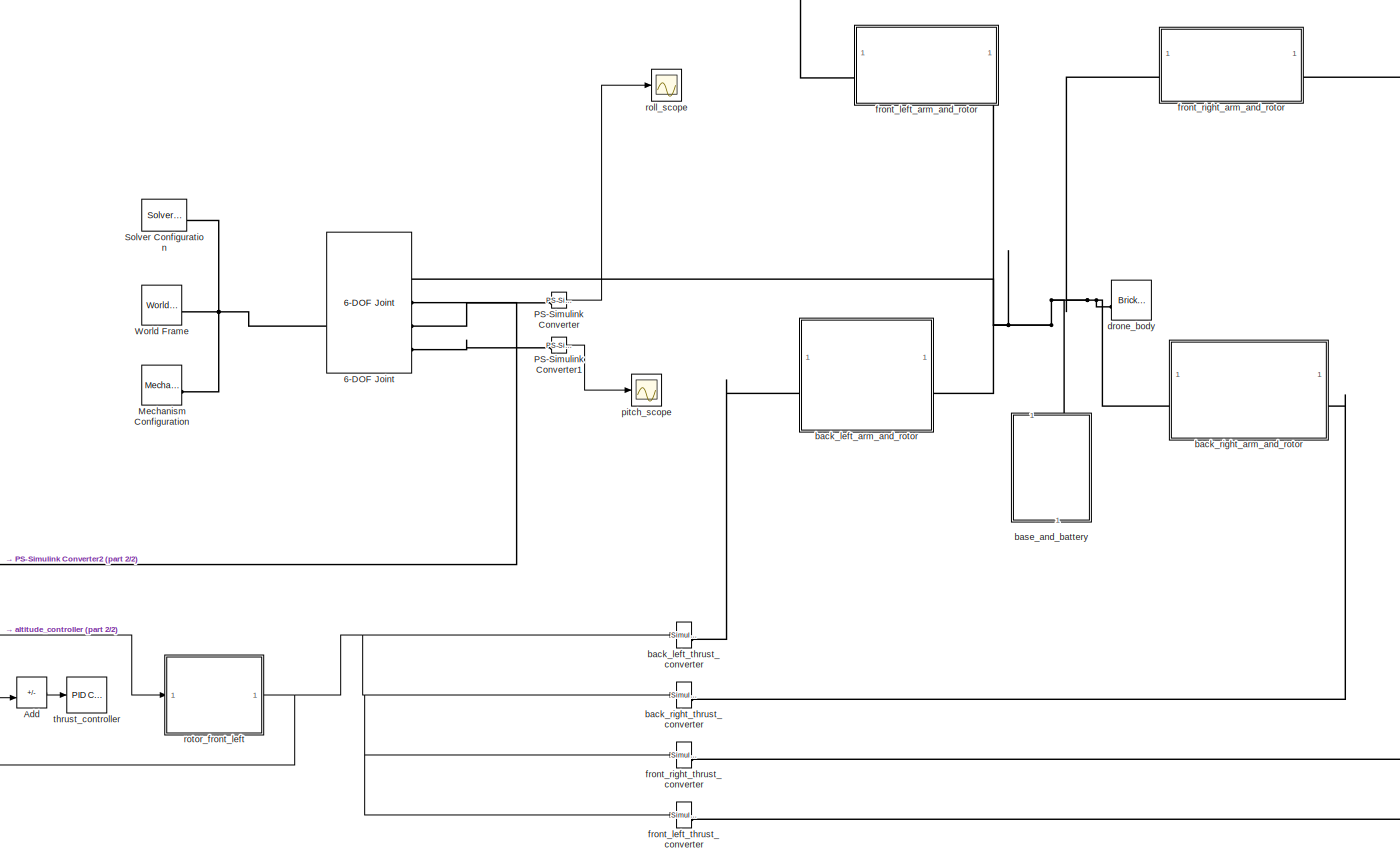
[diagram: root canvas - part 1/2, center side, full height]
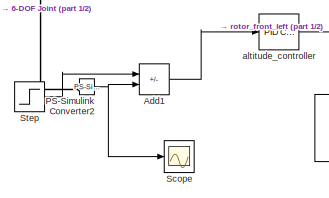
[diagram: root canvas - part 2/2, bottom left region]
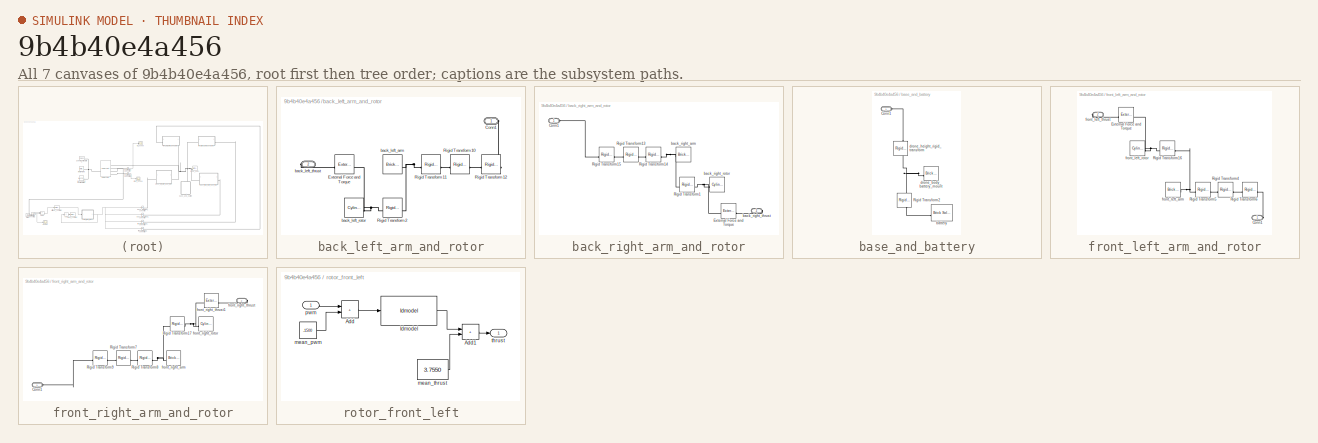
[diagram: thumbnail index - all 7 canvases of the model, root first then tree order]
MODEL slx_9b4b40e4a456
KIND model
CONFIG AbsTol = auto
CONFIG EnableMultiTasking = off
CONFIG FixedStep = auto
CONFIG MaxStep = auto
CONFIG MinStep = auto
CONFIG RelTol = 1e-3
CONFIG SampleTimeConstraint = Unconstrained
CONFIG SolverName = VariableStepAuto
CONFIG StartTime = 0.0
CONFIG StopTime = 10.0
WORKSPACE source: mxarray member
WORKSPACE arm_angle_deg: Simulink.Parameter (value not decoded)
WORKSPACE arm_disp_x_m: Simulink.Parameter (value not decoded)
WORKSPACE arm_disp_y_m: Simulink.Parameter (value not decoded)
WORKSPACE arm_height_m: Simulink.Parameter (value not decoded)
WORKSPACE arm_length_m: Simulink.Parameter (value not decoded)
WORKSPACE arm_mass_kg: Simulink.Parameter (value not decoded)
WORKSPACE arm_width_m: Simulink.Parameter (value not decoded)
WORKSPACE battery_height: Simulink.Parameter (value not decoded)
WORKSPACE battery_length: Simulink.Parameter (value not decoded)
WORKSPACE battery_mass: Simulink.Parameter (value not decoded)
WORKSPACE battery_width: Simulink.Parameter (value not decoded)
WORKSPACE body_height_m: Simulink.Parameter (value not decoded)
WORKSPACE body_length_m: Simulink.Parameter (value not decoded)
WORKSPACE body_mass_kg: Simulink.Parameter (value not decoded)
WORKSPACE body_width_m: Simulink.Parameter (value not decoded)
WORKSPACE rotor_height: Simulink.Parameter (value not decoded)
WORKSPACE rotor_radius: Simulink.Parameter (value not decoded)
BLOCK [Reference] 6-DOF Joint  REF=sm_lib/Joints/6-DOF Joint
  SourceBlock = sm_lib/Joints/6-DOF Joint
  SourceType = 6-DOF Joint
BLOCK [Sum] Add
  IconShape = rectangular
  Inputs = +-
BLOCK [Sum] Add1
  IconShape = rectangular
  Inputs = +-
BLOCK [Reference] Mechanism Configuration  REF=sm_lib/Utilities/Mechanism
Configuration
  SourceBlock = sm_lib/Utilities/Mechanism\nConfiguration
  SourceType = Mechanism\nConfiguration
BLOCK [Reference] PS-Simulink Converter  REF=nesl_utility/PS-Simulink
Converter
  SourceBlock = nesl_utility/PS-Simulink\nConverter
  SourceType = PS-Simulink\nConverter
BLOCK [Reference] PS-Simulink Converter1  REF=nesl_utility/PS-Simulink
Converter
  SourceBlock = nesl_utility/PS-Simulink\nConverter
  SourceType = PS-Simulink\nConverter
BLOCK [Reference] PS-Simulink Converter2  REF=nesl_utility/PS-Simulink
Converter
  SourceBlock = nesl_utility/PS-Simulink\nConverter
  SourceType = PS-Simulink\nConverter
BLOCK [Scope] Scope
  Floating = off
  NumInputPorts = 1
  ScopeSpecificationString = Simulink.scopes.TimeScopeBlockCfg('CurrentConfiguration', extmgr.ConfigurationSet(extmgr.Configuration('Core','General UI',true),extmgr.Configuration('Core','Source UI',true),extmgr.Configuration('Sources','WiredSimulink',true,'DataLoggingVariableName','ScopeData2'),extmgr.Configuration('Visuals','Time Domain',true,'SerializedDisplays',{struct('MinYLimReal','-3.34219','MaxYLimReal','3.02415','YLab...<+1440ch>
BLOCK [Reference] Solver Configuration  REF=nesl_utility/Solver
Configuration
  SourceBlock = nesl_utility/Solver\nConfiguration
  SourceType = Solver\nConfiguration
BLOCK [Step] Step
  After = 2
  SampleTime = 0
  Time = 0
BLOCK [Reference] World Frame  REF=sm_lib/Frames and
Transforms/World Frame
  SourceBlock = sm_lib/Frames and\nTransforms/World Frame
  SourceType = World Frame
BLOCK [Reference] altitude_controller  REF=slpidlib/PID Controller
  LibrarySourceBlock = simulink/Continuous/PID Controller
  SourceBlock = slpidlib/PID Controller
  SourceType = PID 1dof
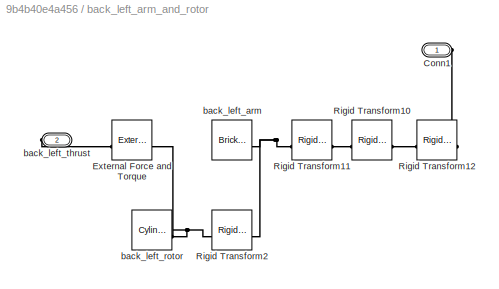
BLOCK [SubSystem] back_left_arm_and_rotor
  NameLocation = top
BLOCK [PMIOPort] back_left_arm_and_rotor/Conn1
  Side = Left
BLOCK [Reference] back_left_arm_and_rotor/External Force and Torque  REF=sm_lib/Forces and
Torques/External Force
and Torque
  SourceBlock = sm_lib/Forces and\nTorques/External Force\nand Torque
  SourceType = External Force\nand Torque
BLOCK [Reference] back_left_arm_and_rotor/Rigid Transform10  REF=sm_lib/Frames and
Transforms/Rigid
Transform
  NameLocation = top
  SourceBlock = sm_lib/Frames and\nTransforms/Rigid\nTransform
  SourceType = Rigid\nTransform
BLOCK [Reference] back_left_arm_and_rotor/Rigid Transform11  REF=sm_lib/Frames and
Transforms/Rigid
Transform
  NameLocation = top
  SourceBlock = sm_lib/Frames and\nTransforms/Rigid\nTransform
  SourceType = Rigid\nTransform
BLOCK [Reference] back_left_arm_and_rotor/Rigid Transform12  REF=sm_lib/Frames and
Transforms/Rigid
Transform
  NameLocation = top
  SourceBlock = sm_lib/Frames and\nTransforms/Rigid\nTransform
  SourceType = Rigid\nTransform
BLOCK [Reference] back_left_arm_and_rotor/Rigid Transform2  REF=sm_lib/Frames and
Transforms/Rigid
Transform
  NameLocation = top
  SourceBlock = sm_lib/Frames and\nTransforms/Rigid\nTransform
  SourceType = Rigid\nTransform
BLOCK [Reference] back_left_arm_and_rotor/back_left_arm  REF=sm_lib/Body Elements/Brick Solid
  SourceBlock = sm_lib/Body Elements/Brick Solid
  SourceType = Brick Solid
BLOCK [Reference] back_left_arm_and_rotor/back_left_rotor  REF=sm_lib/Body Elements/Cylindrical Solid
  SourceBlock = sm_lib/Body Elements/Cylindrical Solid
  SourceType = Cylindrical Solid
BLOCK [PMIOPort] back_left_arm_and_rotor/back_left_thrust
  Port = 2
  Side = Right
BLOCK [Reference] back_left_thrust_converter  REF=nesl_utility/Simulink-PS
Converter
  SourceBlock = nesl_utility/Simulink-PS\nConverter
  SourceType = Simulink-PS\nConverter
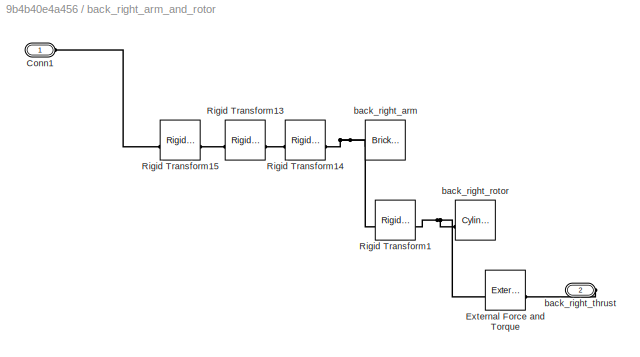
BLOCK [SubSystem] back_right_arm_and_rotor
BLOCK [PMIOPort] back_right_arm_and_rotor/Conn1
  Side = Left
BLOCK [Reference] back_right_arm_and_rotor/External Force and Torque  REF=sm_lib/Forces and
Torques/External Force
and Torque
  NameLocation = top
  SourceBlock = sm_lib/Forces and\nTorques/External Force\nand Torque
  SourceType = External Force\nand Torque
BLOCK [Reference] back_right_arm_and_rotor/Rigid Transform1  REF=sm_lib/Frames and
Transforms/Rigid
Transform
  SourceBlock = sm_lib/Frames and\nTransforms/Rigid\nTransform
  SourceType = Rigid\nTransform
BLOCK [Reference] back_right_arm_and_rotor/Rigid Transform13  REF=sm_lib/Frames and
Transforms/Rigid
Transform
  SourceBlock = sm_lib/Frames and\nTransforms/Rigid\nTransform
  SourceType = Rigid\nTransform
BLOCK [Reference] back_right_arm_and_rotor/Rigid Transform14  REF=sm_lib/Frames and
Transforms/Rigid
Transform
  SourceBlock = sm_lib/Frames and\nTransforms/Rigid\nTransform
  SourceType = Rigid\nTransform
BLOCK [Reference] back_right_arm_and_rotor/Rigid Transform15  REF=sm_lib/Frames and
Transforms/Rigid
Transform
  SourceBlock = sm_lib/Frames and\nTransforms/Rigid\nTransform
  SourceType = Rigid\nTransform
BLOCK [Reference] back_right_arm_and_rotor/back_right_arm  REF=sm_lib/Body Elements/Brick Solid
  NameLocation = top
  SourceBlock = sm_lib/Body Elements/Brick Solid
  SourceType = Brick Solid
BLOCK [Reference] back_right_arm_and_rotor/back_right_rotor  REF=sm_lib/Body Elements/Cylindrical Solid
  NameLocation = top
  SourceBlock = sm_lib/Body Elements/Cylindrical Solid
  SourceType = Cylindrical Solid
BLOCK [PMIOPort] back_right_arm_and_rotor/back_right_thrust
  NameLocation = top
  Port = 2
  Side = Right
BLOCK [Reference] back_right_thrust_converter  REF=nesl_utility/Simulink-PS
Converter
  SourceBlock = nesl_utility/Simulink-PS\nConverter
  SourceType = Simulink-PS\nConverter
BLOCK [SubSystem] base_and_battery
  NameLocation = left
BLOCK [PMIOPort] base_and_battery/Conn1
  Side = Left
BLOCK [Reference] base_and_battery/Rigid Transform2  REF=sm_lib/Frames and
Transforms/Rigid
Transform
  NameLocation = left
  SourceBlock = sm_lib/Frames and\nTransforms/Rigid\nTransform
  SourceType = Rigid\nTransform
BLOCK [Reference] base_and_battery/battery  REF=sm_lib/Body Elements/Brick Solid
  NameLocation = top
  SourceBlock = sm_lib/Body Elements/Brick Solid
  SourceType = Brick Solid
BLOCK [Reference] base_and_battery/drone_body_battery_mount  REF=sm_lib/Body Elements/Brick Solid
  NameLocation = top
  SourceBlock = sm_lib/Body Elements/Brick Solid
  SourceType = Brick Solid
BLOCK [Reference] base_and_battery/drone_height_rigid_transform  REF=sm_lib/Frames and
Transforms/Rigid
Transform
  NameLocation = left
  SourceBlock = sm_lib/Frames and\nTransforms/Rigid\nTransform
  SourceType = Rigid\nTransform
BLOCK [Reference] drone_body  REF=sm_lib/Body Elements/Brick Solid
  NameLocation = top
  SourceBlock = sm_lib/Body Elements/Brick Solid
  SourceType = Brick Solid
BLOCK [SubSystem] front_left_arm_and_rotor
  NameLocation = top
BLOCK [PMIOPort] front_left_arm_and_rotor/Conn1
  Side = Left
BLOCK [Reference] front_left_arm_and_rotor/External Force and Torque  REF=sm_lib/Forces and
Torques/External Force
and Torque
  SourceBlock = sm_lib/Forces and\nTorques/External Force\nand Torque
  SourceType = External Force\nand Torque
BLOCK [Reference] front_left_arm_and_rotor/Rigid Transform16  REF=sm_lib/Frames and
Transforms/Rigid
Transform
  NameLocation = top
  SourceBlock = sm_lib/Frames and\nTransforms/Rigid\nTransform
  SourceType = Rigid\nTransform
BLOCK [Reference] front_left_arm_and_rotor/Rigid Transform4  REF=sm_lib/Frames and
Transforms/Rigid
Transform
  NameLocation = top
  SourceBlock = sm_lib/Frames and\nTransforms/Rigid\nTransform
  SourceType = Rigid\nTransform
BLOCK [Reference] front_left_arm_and_rotor/Rigid Transform5  REF=sm_lib/Frames and
Transforms/Rigid
Transform
  NameLocation = top
  SourceBlock = sm_lib/Frames and\nTransforms/Rigid\nTransform
  SourceType = Rigid\nTransform
BLOCK [Reference] front_left_arm_and_rotor/Rigid Transform6  REF=sm_lib/Frames and
Transforms/Rigid
Transform
  NameLocation = top
  SourceBlock = sm_lib/Frames and\nTransforms/Rigid\nTransform
  SourceType = Rigid\nTransform
BLOCK [Reference] front_left_arm_and_rotor/front_left_arm  REF=sm_lib/Body Elements/Brick Solid
  SourceBlock = sm_lib/Body Elements/Brick Solid
  SourceType = Brick Solid
BLOCK [Reference] front_left_arm_and_rotor/front_left_rotor  REF=sm_lib/Body Elements/Cylindrical Solid
  SourceBlock = sm_lib/Body Elements/Cylindrical Solid
  SourceType = Cylindrical Solid
BLOCK [PMIOPort] front_left_arm_and_rotor/front_left_thrust
  Port = 2
  Side = Right
BLOCK [Reference] front_left_thrust_converter  REF=nesl_utility/Simulink-PS
Converter
  SourceBlock = nesl_utility/Simulink-PS\nConverter
  SourceType = Simulink-PS\nConverter
BLOCK [SubSystem] front_right_arm_and_rotor
BLOCK [PMIOPort] front_right_arm_and_rotor/Conn1
  Side = Left
BLOCK [Reference] front_right_arm_and_rotor/Rigid Transform17  REF=sm_lib/Frames and
Transforms/Rigid
Transform
  SourceBlock = sm_lib/Frames and\nTransforms/Rigid\nTransform
  SourceType = Rigid\nTransform
BLOCK [Reference] front_right_arm_and_rotor/Rigid Transform7  REF=sm_lib/Frames and
Transforms/Rigid
Transform
  SourceBlock = sm_lib/Frames and\nTransforms/Rigid\nTransform
  SourceType = Rigid\nTransform
BLOCK [Reference] front_right_arm_and_rotor/Rigid Transform8  REF=sm_lib/Frames and
Transforms/Rigid
Transform
  SourceBlock = sm_lib/Frames and\nTransforms/Rigid\nTransform
  SourceType = Rigid\nTransform
BLOCK [Reference] front_right_arm_and_rotor/Rigid Transform9  REF=sm_lib/Frames and
Transforms/Rigid
Transform
  SourceBlock = sm_lib/Frames and\nTransforms/Rigid\nTransform
  SourceType = Rigid\nTransform
BLOCK [Reference] front_right_arm_and_rotor/front_right_arm  REF=sm_lib/Body Elements/Brick Solid
  NameLocation = top
  SourceBlock = sm_lib/Body Elements/Brick Solid
  SourceType = Brick Solid
BLOCK [Reference] front_right_arm_and_rotor/front_right_rotor  REF=sm_lib/Body Elements/Cylindrical Solid
  NameLocation = top
  SourceBlock = sm_lib/Body Elements/Cylindrical Solid
  SourceType = Cylindrical Solid
BLOCK [PMIOPort] front_right_arm_and_rotor/front_right_thrust
  NameLocation = top
  Port = 2
  Side = Right
BLOCK [Reference] front_right_arm_and_rotor/front_right_thrust1  REF=sm_lib/Forces and
Torques/External Force
and Torque
  NameLocation = top
  SourceBlock = sm_lib/Forces and\nTorques/External Force\nand Torque
  SourceType = External Force\nand Torque
BLOCK [Reference] front_right_thrust_converter  REF=nesl_utility/Simulink-PS
Converter
  SourceBlock = nesl_utility/Simulink-PS\nConverter
  SourceType = Simulink-PS\nConverter
BLOCK [Scope] pitch_scope
  Floating = off
  NumInputPorts = 1
  ScopeSpecificationString = Simulink.scopes.TimeScopeBlockCfg('CurrentConfiguration', extmgr.ConfigurationSet(extmgr.Configuration('Core','General UI',true),extmgr.Configuration('Core','Source UI',true),extmgr.Configuration('Sources','WiredSimulink',true,'DataLoggingVariableName','ScopeData1'),extmgr.Configuration('Visuals','Time Domain',true,'SerializedDisplays',{struct('MinYLimReal','-1.00000','MaxYLimReal','1.00000','YLab...<+1381ch>
BLOCK [Scope] roll_scope
  Floating = off
  NumInputPorts = 1
  ScopeSpecificationString = Simulink.scopes.TimeScopeBlockCfg('CurrentConfiguration', extmgr.ConfigurationSet(extmgr.Configuration('Core','General UI',true),extmgr.Configuration('Core','Source UI',true),extmgr.Configuration('Sources','WiredSimulink',true),extmgr.Configuration('Visuals','Time Domain',true,'SerializedDisplays',{struct('MinYLimReal','-3864.88516','MaxYLimReal','457.6118','YLabelReal','','MinYLimMag','  0.00000'...<+1359ch>
BLOCK [SubSystem] rotor_front_left
BLOCK [Sum] rotor_front_left/Add
  IconShape = rectangular
BLOCK [Sum] rotor_front_left/Add1
  IconShape = rectangular
BLOCK [Reference] rotor_front_left/Idmodel  REF=slident/Models/Idmodel  (lib defined in mdl_f7d4911ca73a)
  SourceBlock = slident/Models/Idmodel
  SourceType = Idmodel Block
BLOCK [Constant] rotor_front_left/mean_pwm
  Value = -1500
BLOCK [Constant] rotor_front_left/mean_thrust
  Value = 3.7550
BLOCK [Inport] rotor_front_left/pwm
BLOCK [Outport] rotor_front_left/thrust
BLOCK [Reference] thrust_controller  REF=slpidlib/PID Controller
  LibrarySourceBlock = simulink/Continuous/PID Controller
  SourceBlock = slpidlib/PID Controller
  SourceType = PID 1dof
LINE Add1:1 -> altitude_controller:1
LINE Add:1 -> thrust_controller:1
LINE PS-Simulink Converter1:1 -> pitch_scope:1
NET PS-Simulink Converter2:1 -> Add1:2, Scope:1
LINE PS-Simulink Converter:1 -> roll_scope:1
LINE Step:1 -> Add1:1
LINE altitude_controller:1 -> rotor_front_left:1
LINE rotor_front_left/Add1:1 -> rotor_front_left/thrust:1
LINE rotor_front_left/Add:1 -> rotor_front_left/Idmodel:1
LINE rotor_front_left/Idmodel:1 -> rotor_front_left/Add1:1
LINE rotor_front_left/mean_pwm:1 -> rotor_front_left/Add:2
LINE rotor_front_left/mean_thrust:1 -> rotor_front_left/Add1:2
LINE rotor_front_left/pwm:1 -> rotor_front_left/Add:1
NET rotor_front_left:1 -> Add:2, back_left_thrust_converter:1, back_right_thrust_converter:1, front_left_thrust_converter:1, front_right_thrust_converter:1
PNET net1: 6-DOF Joint:LConn1 -- Mechanism Configuration:RConn1 -- Solver Configuration:RConn1 -- World Frame:RConn1
PNET net2: 6-DOF Joint:RConn1 -- back_left_arm_and_rotor:LConn1 -- back_right_arm_and_rotor:LConn1 -- base_and_battery:LConn1 -- drone_body:RConn1 -- front_left_arm_and_rotor:LConn1 -- front_right_arm_and_rotor:LConn1
PLINE 6-DOF Joint:RConn2 -- PS-Simulink Converter2:LConn1
PLINE 6-DOF Joint:RConn3 -- PS-Simulink Converter:LConn1
PLINE 6-DOF Joint:RConn4 -- PS-Simulink Converter1:LConn1
PLINE back_left_arm_and_rotor/Conn1:RConn1 -- back_left_arm_and_rotor/Rigid Transform12:LConn1
PLINE back_left_arm_and_rotor/External Force and Torque:LConn1 -- back_left_arm_and_rotor/back_left_thrust:RConn1
PNET net3: back_left_arm_and_rotor/External Force and Torque:RConn1 -- back_left_arm_and_rotor/Rigid Transform2:RConn1 -- back_left_arm_and_rotor/back_left_rotor:RConn1
PLINE back_left_arm_and_rotor/Rigid Transform10:LConn1 -- back_left_arm_and_rotor/Rigid Transform12:RConn1
PLINE back_left_arm_and_rotor/Rigid Transform10:RConn1 -- back_left_arm_and_rotor/Rigid Transform11:LConn1
PNET net4: back_left_arm_and_rotor/Rigid Transform11:RConn1 -- back_left_arm_and_rotor/Rigid Transform2:LConn1 -- back_left_arm_and_rotor/back_left_arm:RConn1
PLINE back_left_arm_and_rotor:RConn1 -- back_left_thrust_converter:RConn1
PLINE back_right_arm_and_rotor/Conn1:RConn1 -- back_right_arm_and_rotor/Rigid Transform15:LConn1
PLINE back_right_arm_and_rotor/External Force and Torque:LConn1 -- back_right_arm_and_rotor/back_right_thrust:RConn1
PNET net5: back_right_arm_and_rotor/External Force and Torque:RConn1 -- back_right_arm_and_rotor/Rigid Transform1:RConn1 -- back_right_arm_and_rotor/back_right_rotor:RConn1
PLINE back_right_arm_and_rotor/Rigid Transform13:LConn1 -- back_right_arm_and_rotor/Rigid Transform15:RConn1
PLINE back_right_arm_and_rotor/Rigid Transform13:RConn1 -- back_right_arm_and_rotor/Rigid Transform14:LConn1
PNET net6: back_right_arm_and_rotor/Rigid Transform14:RConn1 -- back_right_arm_and_rotor/Rigid Transform1:LConn1 -- back_right_arm_and_rotor/back_right_arm:RConn1
PLINE back_right_arm_and_rotor:RConn1 -- back_right_thrust_converter:RConn1
PLINE base_and_battery/Conn1:RConn1 -- base_and_battery/drone_height_rigid_transform:LConn1
PNET net7: base_and_battery/Rigid Transform2:LConn1 -- base_and_battery/drone_body_battery_mount:RConn1 -- base_and_battery/drone_height_rigid_transform:RConn1
PLINE base_and_battery/Rigid Transform2:RConn1 -- base_and_battery/battery:RConn1
PLINE front_left_arm_and_rotor/Conn1:RConn1 -- front_left_arm_and_rotor/Rigid Transform6:LConn1
PLINE front_left_arm_and_rotor/External Force and Torque:LConn1 -- front_left_arm_and_rotor/front_left_thrust:RConn1
PNET net8: front_left_arm_and_rotor/External Force and Torque:RConn1 -- front_left_arm_and_rotor/Rigid Transform16:RConn1 -- front_left_arm_and_rotor/front_left_rotor:RConn1
PNET net9: front_left_arm_and_rotor/Rigid Transform16:LConn1 -- front_left_arm_and_rotor/Rigid Transform5:RConn1 -- front_left_arm_and_rotor/front_left_arm:RConn1
PLINE front_left_arm_and_rotor/Rigid Transform4:LConn1 -- front_left_arm_and_rotor/Rigid Transform6:RConn1
PLINE front_left_arm_and_rotor/Rigid Transform4:RConn1 -- front_left_arm_and_rotor/Rigid Transform5:LConn1
PLINE front_left_arm_and_rotor:RConn1 -- front_left_thrust_converter:RConn1
PLINE front_right_arm_and_rotor/Conn1:RConn1 -- front_right_arm_and_rotor/Rigid Transform9:LConn1
PNET net10: front_right_arm_and_rotor/Rigid Transform17:LConn1 -- front_right_arm_and_rotor/Rigid Transform8:RConn1 -- front_right_arm_and_rotor/front_right_arm:RConn1
PNET net11: front_right_arm_and_rotor/Rigid Transform17:RConn1 -- front_right_arm_and_rotor/front_right_rotor:RConn1 -- front_right_arm_and_rotor/front_right_thrust1:RConn1
PLINE front_right_arm_and_rotor/Rigid Transform7:LConn1 -- front_right_arm_and_rotor/Rigid Transform9:RConn1
PLINE front_right_arm_and_rotor/Rigid Transform7:RConn1 -- front_right_arm_and_rotor/Rigid Transform8:LConn1
PLINE front_right_arm_and_rotor/front_right_thrust1:LConn1 -- front_right_arm_and_rotor/front_right_thrust:RConn1
PLINE front_right_arm_and_rotor:RConn1 -- front_right_thrust_converter:RConn1
note: NET lines group one-source signal fan-out (src -> all destinations, sorted); 1:1 wires keep LINE; PNET lines group multi-terminal physical nets as a canonical sorted terminal list (undirected conserving connections); 2-terminal nets keep the pairwise PLINE form
